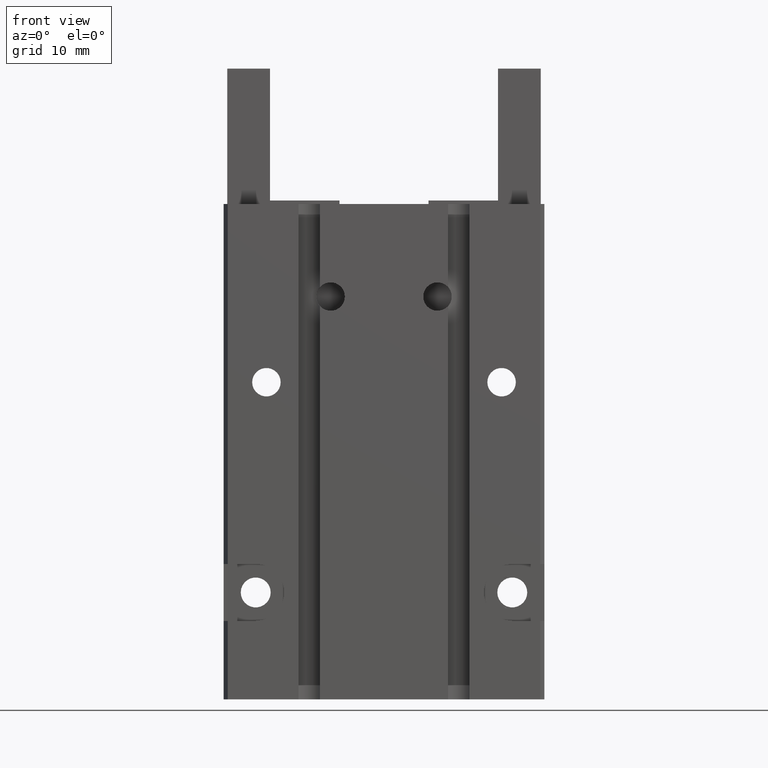
[diagram: clean part render]
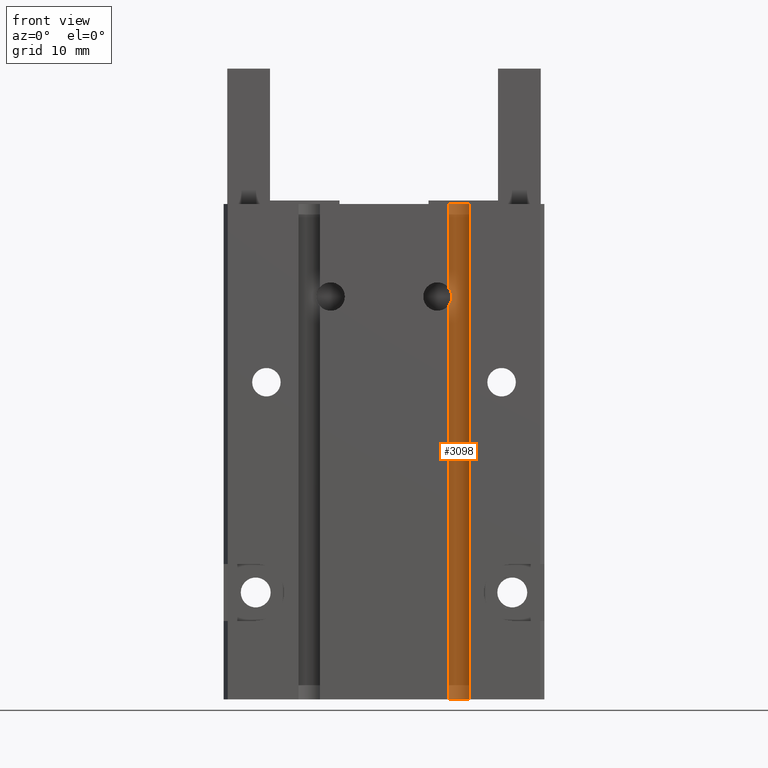
[diagram: same view with one face highlighted and labeled with its STEP entity id]
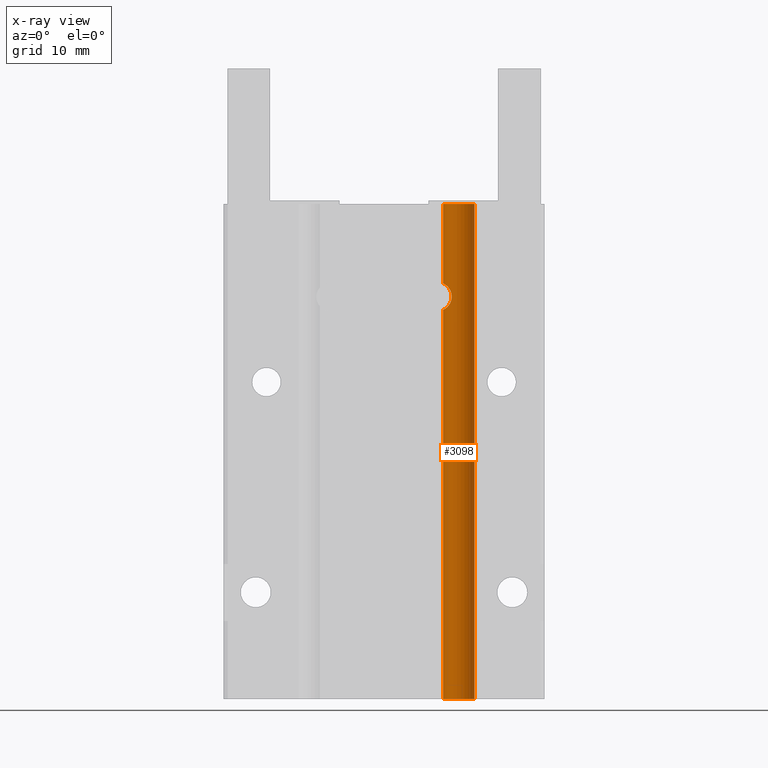
[diagram: x-ray of the same camera — body ghosted, the highlighted face saturated]
A machine part, front view. The second image highlights one B-rep face of the part: STEP entity #3098.
The next image is the same camera in x-ray: the body ghosted, the highlighted face saturated — about 0% of this face is hidden behind the body in this view.
In plain terms, the highlighted cylindrical surface (edge-blend (fillet) strip) has radius 2.2 mm, axis along (0, 0, 1).
Its self-contained STEP definition (entity closure, byte-faithful):
#2703=CARTESIAN_POINT('',(8.30000000000017,-10.,54.6669697220177));
#2704=VERTEX_POINT('Vertex147',#2703);
#2711=CARTESIAN_POINT('',(8.30000000000016,-10.,58.3330302779823));
#2712=VERTEX_POINT('Vertex148',#2711);
#2713=CARTESIAN_POINT('',(8.30000000000017,-10.,54.6669697220177));
#2714=CARTESIAN_POINT('',(8.29999999999998,-9.80194398973078,54.6669697220177)
);
#2715=CARTESIAN_POINT('',(8.32867851328458,-9.58806572661203,54.6785741621012)
);
#2716=CARTESIAN_POINT('',(8.41683257820361,-9.28481130854716,54.7222223487343)
);
#2717=CARTESIAN_POINT('',(8.45340904440935,-9.18649482298054,54.7412108820785)
);
#2718=CARTESIAN_POINT('',(8.53711044524407,-9.00130595034728,54.7892311977666)
);
#2719=CARTESIAN_POINT('',(8.5842182026954,-8.91444080981291,54.8183208474293));
#2720=CARTESIAN_POINT('',(8.68700594046435,-8.74968762635677,54.8890255318143)
);
#2721=CARTESIAN_POINT('',(8.75043383122704,-8.66229750647883,54.9366590560763)
);
#2722=CARTESIAN_POINT('',(8.88188523805835,-8.5059671335516,55.0515480696582));
#2723=CARTESIAN_POINT('',(8.9496285670009,-8.43696053561106,55.1190335663307));
#2724=CARTESIAN_POINT('',(9.07729335298467,-8.31944690143511,55.2660377629862)
);
#2725=CARTESIAN_POINT('',(9.14410244529075,-8.26587551183083,55.3552634328225)
);
#2726=CARTESIAN_POINT('',(9.26557941825657,-8.17740522008453,55.5533089233428)
);
#2727=CARTESIAN_POINT('',(9.32018519990333,-8.14238471318279,55.6621124874814)
);
#2728=CARTESIAN_POINT('',(9.40914479460461,-8.08878818459153,55.8914789284264)
);
#2729=CARTESIAN_POINT('',(9.44359799021782,-8.07005780068338,56.0122789229298)
);
#2730=CARTESIAN_POINT('',(9.48902610276991,-8.04587772262402,56.2566480689156)
);
#2731=CARTESIAN_POINT('',(9.49999999999998,-8.04040820577345,56.3802154481192)
);
#2732=CARTESIAN_POINT('',(9.49999999999998,-8.04040820577345,56.6197845518808)
);
#2733=CARTESIAN_POINT('',(9.4890261027699,-8.04587772262402,56.7433519310844));
#2734=CARTESIAN_POINT('',(9.44359799021782,-8.07005780068338,56.9877210770702)
);
#2735=CARTESIAN_POINT('',(9.40914479460461,-8.08878818459154,57.1085210715736)
);
#2736=CARTESIAN_POINT('',(9.32018519990333,-8.1423847131828,57.3378875125186));
#2737=CARTESIAN_POINT('',(9.26557941825657,-8.17740522008453,57.4466910766572)
);
#2738=CARTESIAN_POINT('',(9.14410244529074,-8.26587551183083,57.6447365671775)
);
#2739=CARTESIAN_POINT('',(9.07729335298467,-8.31944690143511,57.7339622370138)
);
#2740=CARTESIAN_POINT('',(8.9496285670009,-8.43696053561106,57.8809664336693));
#2741=CARTESIAN_POINT('',(8.88188523805835,-8.5059671335516,57.9484519303418));
#2742=CARTESIAN_POINT('',(8.75043383122704,-8.66229750647883,58.0633409439237)
);
#2743=CARTESIAN_POINT('',(8.68700594046435,-8.74968762635677,58.1109744681857)
);
#2744=CARTESIAN_POINT('',(8.5842182026954,-8.91444080981291,58.1816791525707));
#2745=CARTESIAN_POINT('',(8.53711044524407,-9.00130595034729,58.2107688022334)
);
#2746=CARTESIAN_POINT('',(8.45340904440935,-9.18649482298055,58.2587891179215)
);
#2747=CARTESIAN_POINT('',(8.41683257820361,-9.28481130854716,58.2777776512657)
);
#2748=CARTESIAN_POINT('',(8.32867851328458,-9.58806572661202,58.3214258378988)
);
#2749=CARTESIAN_POINT('',(8.29999999999998,-9.80194398973078,58.3330302779823)
);
#2750=CARTESIAN_POINT('',(8.30000000000016,-10.,58.3330302779823));
#2751=B_SPLINE_CURVE_WITH_KNOTS('nurbsCrv185',3,(#2713,#2714,#2715,#2716,#2717,
#2718,#2719,#2720,#2721,#2722,#2723,#2724,#2725,#2726,#2727,#2728,#2729,#2730,
#2731,#2732,#2733,#2734,#2735,#2736,#2737,#2738,#2739,#2740,#2741,#2742,#2743,
#2744,#2745,#2746,#2747,#2748,#2749,#2750),.UNSPECIFIED.,.F.,.F.,(4,2,2,2,2,2,2
,2,2,2,2,2,2,2,2,2,2,2,4),(3.27153869452889,3.86570672533655,4.16279074074038,
4.45987475614421,4.78276876131624,5.10566276648826,5.46501642213064,
5.82437007777302,6.1837237334154,6.54307738905777,6.90243104470014,
7.26178470034251,7.62113835598488,7.98049201162725,8.30338601679928,
8.62628002197131,8.92336403737514,9.22044805277897,9.81461608358663),
.UNSPECIFIED.);
#2752=EDGE_CURVE('Edge185',#2704,#2712,#2751,.T.);
#3019=CARTESIAN_POINT('',(12.6999999999998,-10.,3.2758219964748E-015));
#3020=VERTEX_POINT('Vertex165',#3019);
#3021=CARTESIAN_POINT('',(12.6999999999998,-10.,69.5));
#3022=VERTEX_POINT('Vertex164',#3021);
#3023=CARTESIAN_POINT('',(12.6999999999998,-10.,34.75));
#3024=DIRECTION('',(-3.32268185787097E-016,0.,1.));
#3025=VECTOR('',#3024,1.);
#3026=LINE('nurbsCrv207',#3023,#3025);
#3027=EDGE_CURVE('Edge207',#3020,#3022,#3026,.T.);
#3059=CARTESIAN_POINT('',(8.30000000000018,-10.,1.9287550072703E-015));
#3060=VERTEX_POINT('Vertex168',#3059);
#3061=CARTESIAN_POINT('',(8.30000000000017,-10.,27.3334848610089));
#3062=DIRECTION('',(-3.24941522903693E-016,0.,1.));
#3063=VECTOR('',#3062,1.);
#3064=LINE('nurbsCrv211',#3061,#3063);
#3065=EDGE_CURVE('Edge211',#3060,#2704,#3064,.T.);
#3066=ORIENTED_EDGE('Edgeuse338',*,*,#3065,.F.);
#3067=CARTESIAN_POINT('',(10.5,-9.99999999999978,0.));
#3068=DIRECTION('',(0.,0.,1.));
#3069=DIRECTION('',(1.,-9.76996261670218E-014,0.));
#3070=AXIS2_PLACEMENT_3D('',#3067,#3068,#3069);
#3071=CIRCLE('nurbsCrv212',#3070,2.19999999999979);
#3072=EDGE_CURVE('Edge212',#3020,#3060,#3071,.T.);
#3073=ORIENTED_EDGE('Edgeuse339',*,*,#3072,.F.);
#3074=ORIENTED_EDGE('Edgeuse340',*,*,#3027,.T.);
#3075=CARTESIAN_POINT('',(8.30000000000016,-10.,69.5));
#3076=VERTEX_POINT('Vertex169',#3075);
#3077=CARTESIAN_POINT('',(10.5,-9.99999999999978,69.5));
#3078=DIRECTION('',(0.,0.,-1.));
#3079=DIRECTION('',(-1.,-9.76996261670219E-014,0.));
#3080=AXIS2_PLACEMENT_3D('',#3077,#3078,#3079);
#3081=CIRCLE('nurbsCrv213',#3080,2.19999999999979);
#3082=EDGE_CURVE('Edge213',#3076,#3022,#3081,.T.);
#3083=ORIENTED_EDGE('Edgeuse341',*,*,#3082,.F.);
#3084=CARTESIAN_POINT('',(8.30000000000016,-10.,63.9165151389911));
#3085=DIRECTION('',(-3.18144829549924E-016,0.,1.));
#3086=VECTOR('',#3085,1.);
#3087=LINE('nurbsCrv214',#3084,#3086);
#3088=EDGE_CURVE('Edge214',#2712,#3076,#3087,.T.);
#3089=ORIENTED_EDGE('Edgeuse342',*,*,#3088,.F.);
#3090=ORIENTED_EDGE('Edgeuse343',*,*,#2752,.F.);
#3091=EDGE_LOOP('',(#3066,#3073,#3074,#3083,#3089,#3090));
#3092=FACE_OUTER_BOUND('',#3091,.T.);
#3093=CARTESIAN_POINT('',(10.5,-10.,-3.475));
#3094=DIRECTION('',(0.,0.,1.));
#3095=DIRECTION('',(6.43929354282591E-015,-1.,0.));
#3096=AXIS2_PLACEMENT_3D('',#3093,#3094,#3095);
#3097=CYLINDRICAL_SURFACE('nurbsSrf66',#3096,2.20000000000001);
#3098=ADVANCED_FACE('Face66',(#3092),#3097,.F.);